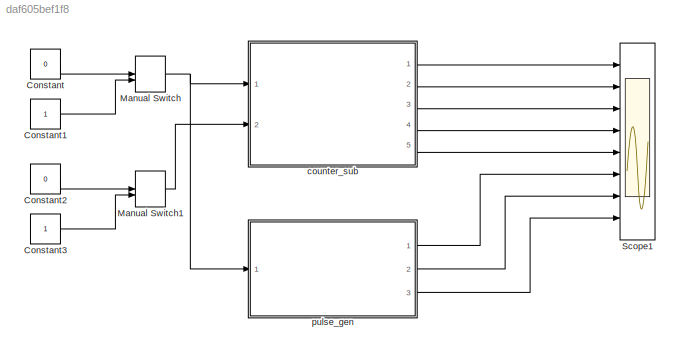
MODEL slx_daf605bef1f8
KIND model
CONFIG AbsTol = auto
CONFIG FixedStep = auto
CONFIG MaxStep = auto
CONFIG MinStep = auto
CONFIG RelTol = 1e-3
CONFIG SampleTimeConstraint = Unconstrained
CONFIG Solver = FixedStepDiscrete
CONFIG SolverMode = SingleTasking
CONFIG SolverName = FixedStepDiscrete
CONFIG StartTime = 0.0
CONFIG StopTime = 2000
BLOCK [Constant] Constant
  OutDataTypeStr = boolean
  SampleTime = 1
  Value = 0
BLOCK [Constant] Constant1
  OutDataTypeStr = boolean
  SampleTime = 1
BLOCK [Constant] Constant2
  OutDataTypeStr = boolean
  SampleTime = 1
  Value = 0
BLOCK [Constant] Constant3
  OutDataTypeStr = boolean
  SampleTime = 1
BLOCK [ManualSwitch] Manual Switch
BLOCK [ManualSwitch] Manual Switch1
  CurrentSetting = 0
BLOCK [Scope] Scope1
  NumInputPorts = 8
  Ports = [8]
  ScopeSpecificationString = Simulink.scopes.TimeScopeBlockCfg('CurrentConfiguration', extmgr.ConfigurationSet(extmgr.Configuration('Core','General UI',true),extmgr.Configuration('Core','Source UI',true),extmgr.Configuration('Sources','WiredSimulink',true,'DataLoggingVariableName','ScopeData1','DataLoggingSaveFormat','StructureWithTime','DataLoggingDecimation','1','DataLoggingDecimateData',true),extmgr.Configuration('Visuals'...<+6471ch>
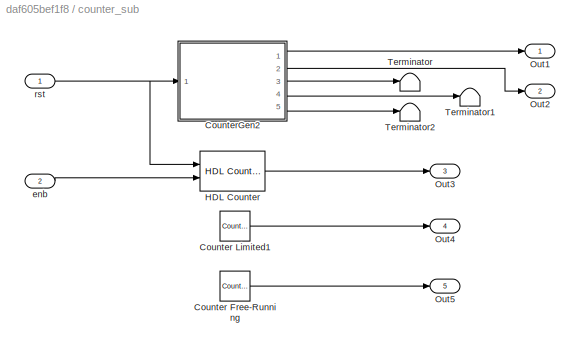
BLOCK [SubSystem] counter_sub
  Ports = [2, 5]
  RequestExecContextInheritance = off
  Variant = off
BLOCK [Reference] counter_sub/Counter Free-Running  REF=simulink/Sources/Counter
Free-Running
  Ports = [0, 1]
  SourceBlock = simulink/Sources/Counter\nFree-Running
  SourceType = Counter Free-Running
BLOCK [Reference] counter_sub/Counter Limited1  REF=simulink/Sources/Counter
Limited
  Ports = [0, 1]
  SourceBlock = simulink/Sources/Counter\nLimited
  SourceType = Counter Limited
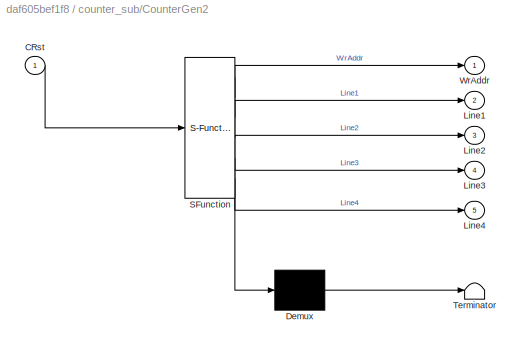
BLOCK [SubSystem] counter_sub/CounterGen2
  ErrorFcn = Stateflow.Translate.translate
  PermitHierarchicalResolution = ExplicitOnly
  Ports = [1, 5]
  RequestExecContextInheritance = off
  SFBlockType = MATLAB Function
  TreatAsAtomicUnit = on
  Variant = off
BLOCK [Demux] counter_sub/CounterGen2/ Demux 
  Outputs = 1
  Ports = [1, 1]
BLOCK [S-Function] counter_sub/CounterGen2/ SFunction 
  EnableBusSupport = on
  FunctionName = sf_sfun
  PortCounts = [1 6]
  Ports = [1, 6]
  SFunctionDeploymentMode = off
  Tag = Stateflow S-Function slb_counter_pulgen 4
BLOCK [Terminator] counter_sub/CounterGen2/ Terminator 
BLOCK [Inport] counter_sub/CounterGen2/CRst
  IconDisplay = Port number
BLOCK [Outport] counter_sub/CounterGen2/Line1
  IconDisplay = Port number
  Port = 2
BLOCK [Outport] counter_sub/CounterGen2/Line2
  IconDisplay = Port number
  Port = 3
BLOCK [Outport] counter_sub/CounterGen2/Line3
  IconDisplay = Port number
  Port = 4
BLOCK [Outport] counter_sub/CounterGen2/Line4
  IconDisplay = Port number
  Port = 5
BLOCK [Outport] counter_sub/CounterGen2/WrAddr
  IconDisplay = Port number
BLOCK [Reference] counter_sub/HDL Counter  REF=hdlsllib/HDL Operations/HDL Counter
  Ports = [2, 1]
  SourceBlock = hdlsllib/HDL Operations/HDL Counter
  SourceType = HDL Counter
BLOCK [Outport] counter_sub/Out1
  IconDisplay = Port number
BLOCK [Outport] counter_sub/Out2
  IconDisplay = Port number
  Port = 2
BLOCK [Outport] counter_sub/Out3
  IconDisplay = Port number
  Port = 3
BLOCK [Outport] counter_sub/Out4
  IconDisplay = Port number
  Port = 4
BLOCK [Outport] counter_sub/Out5
  IconDisplay = Port number
  Port = 5
BLOCK [Terminator] counter_sub/Terminator
BLOCK [Terminator] counter_sub/Terminator1
BLOCK [Terminator] counter_sub/Terminator2
BLOCK [Inport] counter_sub/enb
  IconDisplay = Port number
  Port = 2
BLOCK [Inport] counter_sub/rst
  IconDisplay = Port number
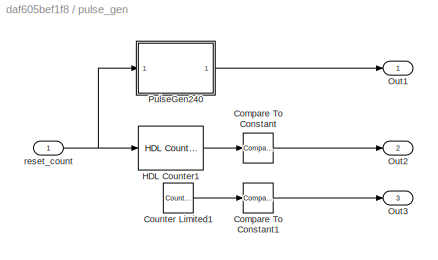
BLOCK [SubSystem] pulse_gen
  Ports = [1, 3]
  RequestExecContextInheritance = off
  Variant = off
BLOCK [Reference] pulse_gen/Compare To Constant  REF=simulink/Logic and Bit
Operations/Compare
To Constant
  Ports = [1, 1]
  SourceBlock = simulink/Logic and Bit\nOperations/Compare\nTo Constant
  SourceType = Compare To Constant
BLOCK [Reference] pulse_gen/Compare To Constant1  REF=simulink/Logic and Bit
Operations/Compare
To Constant
  Ports = [1, 1]
  SourceBlock = simulink/Logic and Bit\nOperations/Compare\nTo Constant
  SourceType = Compare To Constant
BLOCK [Reference] pulse_gen/Counter Limited1  REF=simulink/Sources/Counter
Limited
  Ports = [0, 1]
  SourceBlock = simulink/Sources/Counter\nLimited
  SourceType = Counter Limited
BLOCK [Reference] pulse_gen/HDL Counter1  REF=hdlsllib/HDL Operations/HDL Counter
  Ports = [1, 1]
  SourceBlock = hdlsllib/HDL Operations/HDL Counter
  SourceType = HDL Counter
BLOCK [Outport] pulse_gen/Out1
  IconDisplay = Port number
BLOCK [Outport] pulse_gen/Out2
  IconDisplay = Port number
  Port = 2
BLOCK [Outport] pulse_gen/Out3
  IconDisplay = Port number
  Port = 3
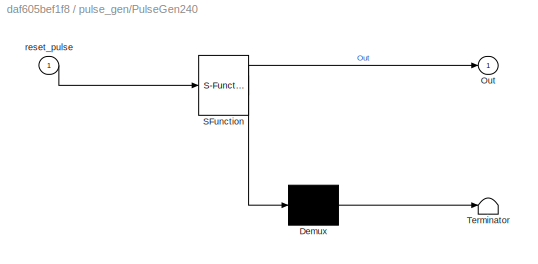
BLOCK [SubSystem] pulse_gen/PulseGen240
  ErrorFcn = Stateflow.Translate.translate
  PermitHierarchicalResolution = ExplicitOnly
  Ports = [1, 1]
  RequestExecContextInheritance = off
  SFBlockType = MATLAB Function
  TreatAsAtomicUnit = on
  Variant = off
BLOCK [Demux] pulse_gen/PulseGen240/ Demux 
  Outputs = 1
  Ports = [1, 1]
BLOCK [S-Function] pulse_gen/PulseGen240/ SFunction 
  EnableBusSupport = on
  FunctionName = sf_sfun
  PortCounts = [1 2]
  Ports = [1, 2]
  SFunctionDeploymentMode = off
  Tag = Stateflow S-Function slb_counter_pulgen 12
BLOCK [Terminator] pulse_gen/PulseGen240/ Terminator 
BLOCK [Outport] pulse_gen/PulseGen240/Out
  IconDisplay = Port number
BLOCK [Inport] pulse_gen/PulseGen240/reset_pulse
  IconDisplay = Port number
BLOCK [Inport] pulse_gen/reset_count
  IconDisplay = Port number
LINE Constant1:1 -> Manual Switch:2
LINE Constant2:1 -> Manual Switch1:1
LINE Constant3:1 -> Manual Switch1:2
LINE Constant:1 -> Manual Switch:1
LINE Manual Switch1:1 -> counter_sub:2
NET Manual Switch:1 -> counter_sub:1, pulse_gen:1
LINE counter_sub/Counter Free-Running:1 -> counter_sub/Out5:1
LINE counter_sub/Counter Limited1:1 -> counter_sub/Out4:1
LINE counter_sub/CounterGen2:1 -> counter_sub/Out1:1
LINE counter_sub/CounterGen2:2 -> counter_sub/Out2:1
LINE counter_sub/CounterGen2:3 -> counter_sub/Terminator:1
LINE counter_sub/CounterGen2:4 -> counter_sub/Terminator1:1
LINE counter_sub/CounterGen2:5 -> counter_sub/Terminator2:1
LINE counter_sub/HDL Counter:1 -> counter_sub/Out3:1
LINE counter_sub/enb:1 -> counter_sub/HDL Counter:2
NET counter_sub/rst:1 -> counter_sub/CounterGen2:1, counter_sub/HDL Counter:1
LINE counter_sub:1 -> Scope1:1
LINE counter_sub:2 -> Scope1:2
LINE counter_sub:3 -> Scope1:3
LINE counter_sub:4 -> Scope1:4
LINE counter_sub:5 -> Scope1:5
LINE pulse_gen/Compare To Constant1:1 -> pulse_gen/Out3:1
LINE pulse_gen/Compare To Constant:1 -> pulse_gen/Out2:1
LINE pulse_gen/Counter Limited1:1 -> pulse_gen/Compare To Constant1:1
LINE pulse_gen/HDL Counter1:1 -> pulse_gen/Compare To Constant:1
LINE pulse_gen/PulseGen240:1 -> pulse_gen/Out1:1
NET pulse_gen/reset_count:1 -> pulse_gen/HDL Counter1:1, pulse_gen/PulseGen240:1
LINE pulse_gen:1 -> Scope1:6
LINE pulse_gen:2 -> Scope1:7
LINE pulse_gen:3 -> Scope1:8
note: NET lines group one-source signal fan-out (src -> all destinations, sorted); 1:1 wires keep LINE
CHART counter_sub/CounterGen2 states=1 transitions=1
  STATE_LABEL 'eML_blk_kernel()'
  STATE_LABEL "SCRIPT:\nfunction [WrAddr,Line1,Line2,Line3,Line4] = counter(CRst)\n% This block supports the Embedded MATLAB subset.\n% See the help menu for details. \n\n% Parameters\nDelayNum=240;\nUpperLim = DelayNum*4;\n\nType_nt = numerictype(0,ceil(log2(UpperLim)),0);\nType_fm = fimath('OverflowMode', 'wrap', 'RoundMode', 'floor');\n\nLine1Lim = fi(UpperLim-DelayNum,Type_nt, Type_fm);\nLine2Lim = fi(UpperLim-(DelayNum*...<+1167ch>"
CHART pulse_gen/PulseGen240 states=1 transitions=1
  STATE_LABEL 'eML_blk_kernel()'
  STATE_LABEL "SCRIPT:\nfunction Out = counter(reset_pulse)\n% This block supports the Embedded MATLAB subset.\n% See the help menu for details. \n\n% Parameters\nCycle = 240*2;\nPulseWidth = 240;\nPhaseOffset = 0;\n\nType_nt = numerictype(0,10,0);\nType_nt1 = numerictype(0,11,0);\nType_fm = fimath('OverflowMode', 'wrap', 'RoundMode', 'floor');\n\npersistent CountTemp Temp\n\nif isempty(CountTemp)\n\tCountTemp = fi(0,Type_nt, Typ...<+352ch>"
